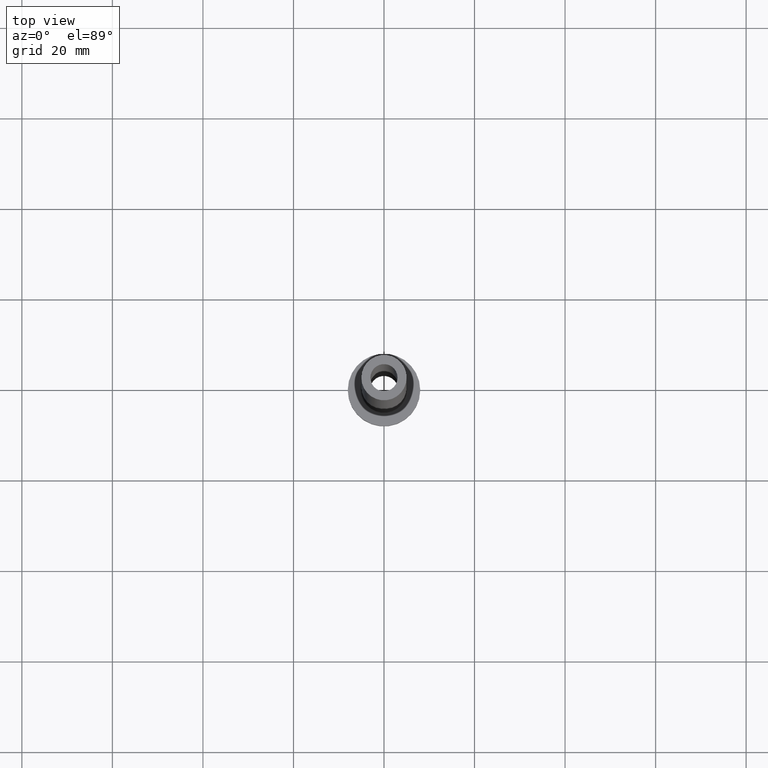
[diagram: clean part render]
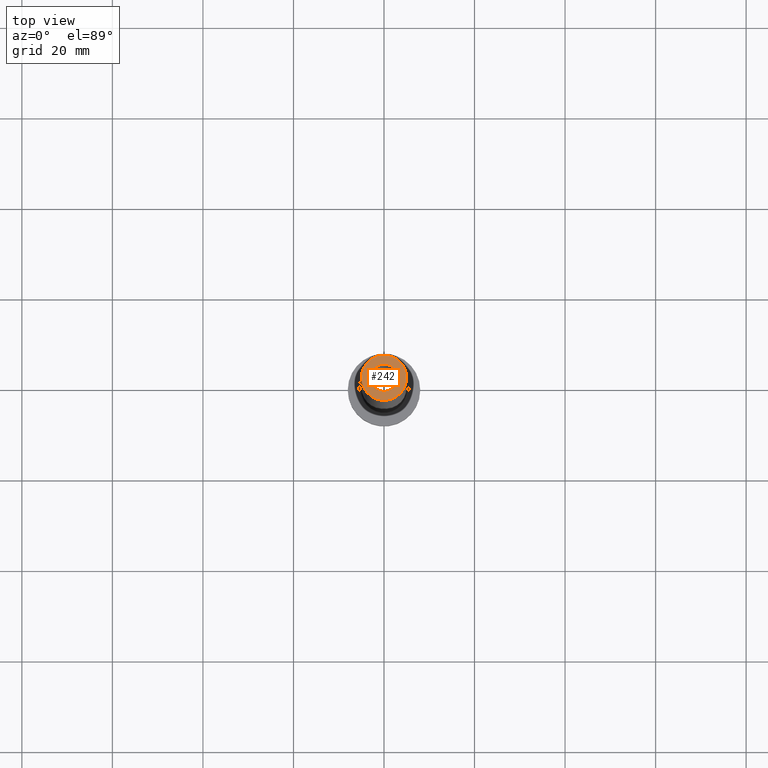
[diagram: same view with one face highlighted and labeled with its STEP entity id]
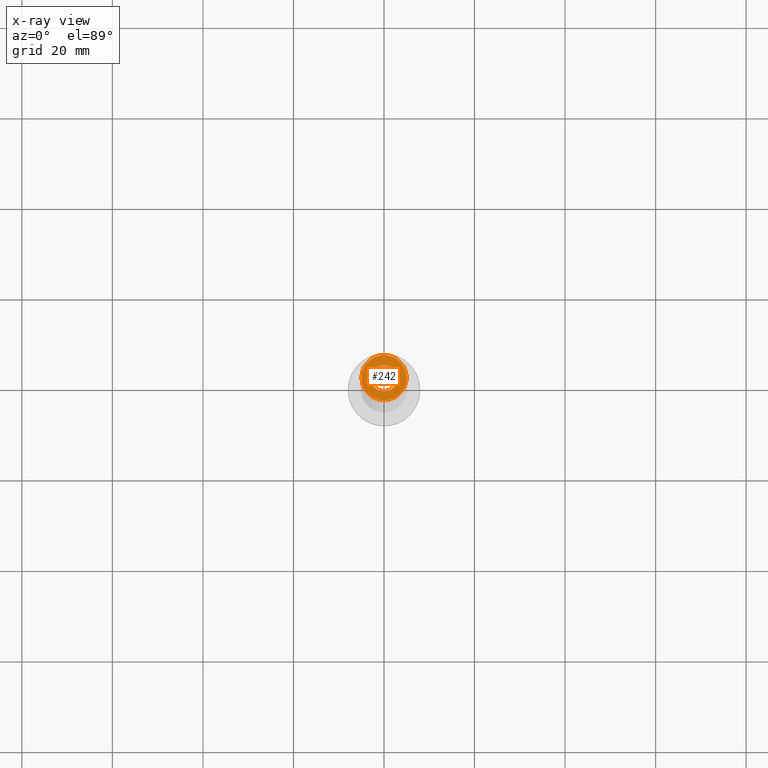
[diagram: x-ray of the same camera — body ghosted, the highlighted face saturated]
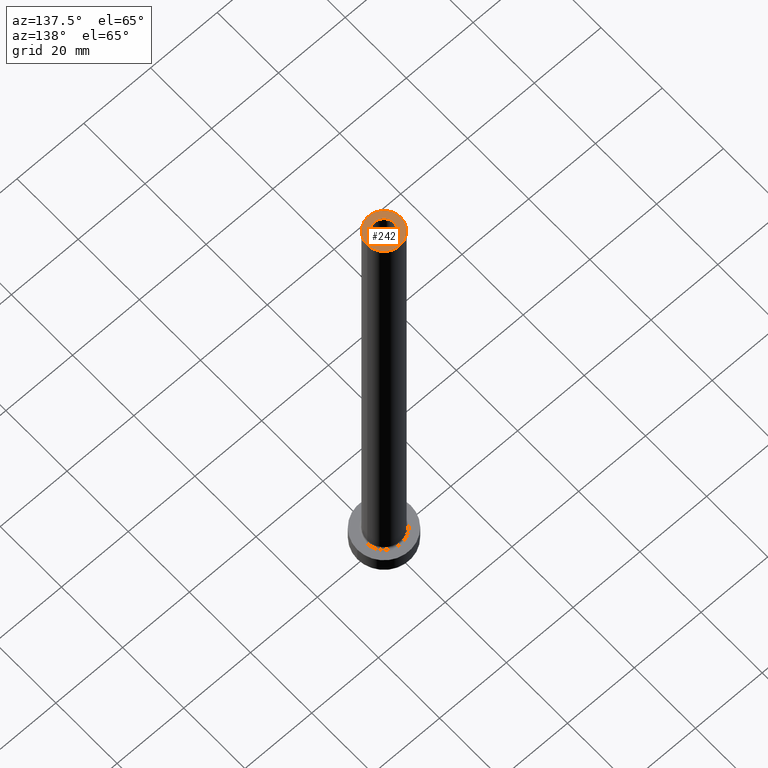
[diagram: same view with one face highlighted and labeled with its STEP entity id]
A machine part, top view. The second image highlights one B-rep face of the part: STEP entity #242.
The next image is the same camera in x-ray: the body ghosted, the highlighted face saturated — about 0% of this face is hidden behind the body in this view.
A second angle (auxiliary view) of the same face is appended — the face is thin or edge-on in the first view.
In plain terms, the highlighted planar face has unit normal (0, 0, 1).
Its self-contained STEP definition (entity closure, byte-faithful):
#15 = DIRECTION ( 'NONE',  ( 1.000000000000000000, 0.000000000000000000, 0.000000000000000000 ) ) ;
#22 = AXIS2_PLACEMENT_3D ( 'NONE', #275, #189, #374 ) ;
#58 = PLANE ( 'NONE',  #459 ) ;
#91 = AXIS2_PLACEMENT_3D ( 'NONE', #401, #255, #221 ) ;
#117 = ORIENTED_EDGE ( 'NONE', *, *, #393, .T. ) ;
#132 = CIRCLE ( 'NONE', #91, 3.000000000000000444 ) ;
#134 = CARTESIAN_POINT ( 'NONE',  ( 5.000000000000000000, 6.123233995736766282E-16, 160.0000000000000000 ) ) ;
#158 = DIRECTION ( 'NONE',  ( 0.000000000000000000, 0.000000000000000000, 1.000000000000000000 ) ) ;
#167 = CARTESIAN_POINT ( 'NONE',  ( 0.000000000000000000, 0.000000000000000000, 160.0000000000000000 ) ) ;
#171 = EDGE_CURVE ( 'NONE', #240, #327, #132, .T. ) ;
#188 = VERTEX_POINT ( 'NONE', #395 ) ;
#189 = DIRECTION ( 'NONE',  ( 0.000000000000000000, 0.000000000000000000, 1.000000000000000000 ) ) ;
#199 = CARTESIAN_POINT ( 'NONE',  ( 0.000000000000000000, 0.000000000000000000, 160.0000000000000000 ) ) ;
#200 = CIRCLE ( 'NONE', #22, 3.000000000000000444 ) ;
#201 = ORIENTED_EDGE ( 'NONE', *, *, #220, .F. ) ;
#220 = EDGE_CURVE ( 'NONE', #327, #240, #200, .T. ) ;
#221 = DIRECTION ( 'NONE',  ( 1.000000000000000000, 0.000000000000000000, 0.000000000000000000 ) ) ;
#223 = CIRCLE ( 'NONE', #287, 5.000000000000000000 ) ;
#237 = FACE_BOUND ( 'NONE', #360, .T. ) ;
#240 = VERTEX_POINT ( 'NONE', #303 ) ;
#242 = ADVANCED_FACE ( 'NONE', ( #237, #434 ), #58, .T. ) ;
#255 = DIRECTION ( 'NONE',  ( 0.000000000000000000, 0.000000000000000000, 1.000000000000000000 ) ) ;
#265 = DIRECTION ( 'NONE',  ( 0.000000000000000000, 0.000000000000000000, 1.000000000000000000 ) ) ;
#274 = ORIENTED_EDGE ( 'NONE', *, *, #171, .F. ) ;
#275 = CARTESIAN_POINT ( 'NONE',  ( 0.000000000000000000, 0.000000000000000000, 160.0000000000000000 ) ) ;
#279 = EDGE_CURVE ( 'NONE', #188, #407, #323, .T. ) ;
#286 = DIRECTION ( 'NONE',  ( 1.000000000000000000, 0.000000000000000000, 0.000000000000000000 ) ) ;
#287 = AXIS2_PLACEMENT_3D ( 'NONE', #167, #455, #286 ) ;
#303 = CARTESIAN_POINT ( 'NONE',  ( 3.000000000000000444, 3.673940397442059868E-16, 160.0000000000000000 ) ) ;
#323 = CIRCLE ( 'NONE', #448, 5.000000000000000000 ) ;
#327 = VERTEX_POINT ( 'NONE', #347 ) ;
#334 = EDGE_LOOP ( 'NONE', ( #445, #117 ) ) ;
#342 = DIRECTION ( 'NONE',  ( 1.000000000000000000, 0.000000000000000000, -0.000000000000000000 ) ) ;
#347 = CARTESIAN_POINT ( 'NONE',  ( -3.000000000000000444, 0.000000000000000000, 160.0000000000000000 ) ) ;
#360 = EDGE_LOOP ( 'NONE', ( #201, #274 ) ) ;
#366 = CARTESIAN_POINT ( 'NONE',  ( 0.000000000000000000, 0.000000000000000000, 160.0000000000000000 ) ) ;
#374 = DIRECTION ( 'NONE',  ( 1.000000000000000000, 0.000000000000000000, 0.000000000000000000 ) ) ;
#393 = EDGE_CURVE ( 'NONE', #407, #188, #223, .T. ) ;
#395 = CARTESIAN_POINT ( 'NONE',  ( -5.000000000000000000, 0.000000000000000000, 160.0000000000000000 ) ) ;
#401 = CARTESIAN_POINT ( 'NONE',  ( 0.000000000000000000, 0.000000000000000000, 160.0000000000000000 ) ) ;
#407 = VERTEX_POINT ( 'NONE', #134 ) ;
#434 = FACE_OUTER_BOUND ( 'NONE', #334, .T. ) ;
#445 = ORIENTED_EDGE ( 'NONE', *, *, #279, .T. ) ;
#448 = AXIS2_PLACEMENT_3D ( 'NONE', #366, #265, #15 ) ;
#455 = DIRECTION ( 'NONE',  ( 0.000000000000000000, 0.000000000000000000, 1.000000000000000000 ) ) ;
#459 = AXIS2_PLACEMENT_3D ( 'NONE', #199, #158, #342 ) ;